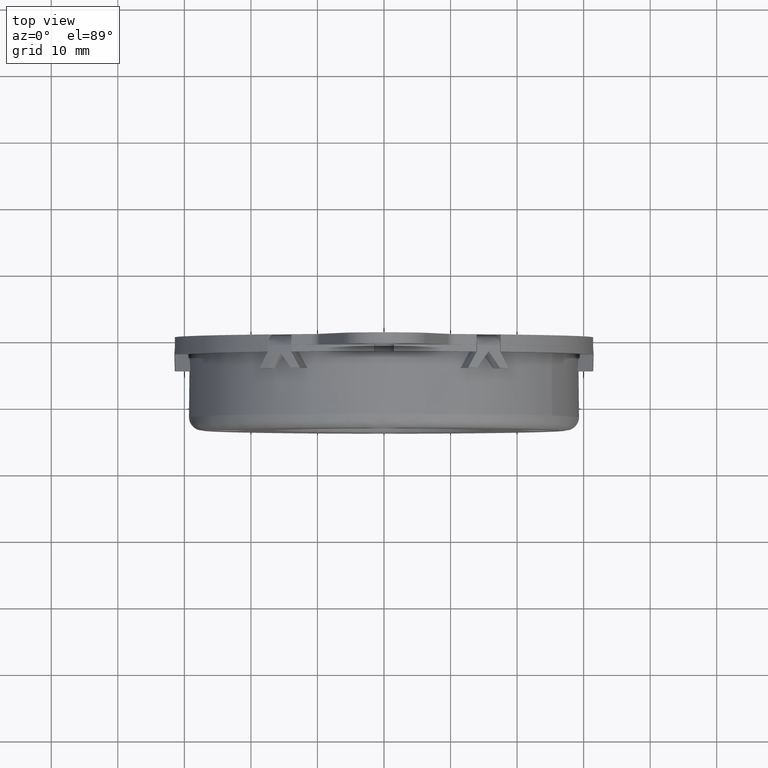
[diagram: clean part render]
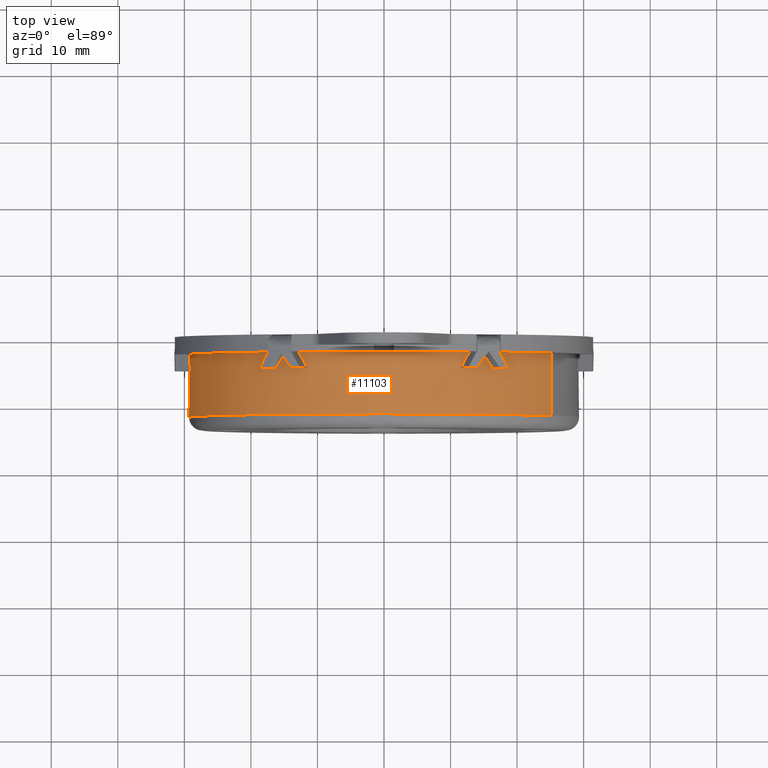
[diagram: same view with one face highlighted and labeled with its STEP entity id]
A machine part, top view. The second image highlights one B-rep face of the part: STEP entity #11103.
In plain terms, the highlighted face is a freeform B-spline surface patch.
Its self-contained STEP definition (entity closure, byte-faithful):
#4214=CARTESIAN_POINT('',(25.217121696561119,-12.000000000325221,14.919322616688611));
#4215=VERTEX_POINT('',#4214);
#4229=CARTESIAN_POINT('',(0.0,-12.000000000000121,29.299990000000001));
#4230=VERTEX_POINT('',#4229);
#4231=CARTESIAN_POINT('',(0.0,-12.000000000000121,29.299990000000001));
#4232=CARTESIAN_POINT('',(16.709020783357232,-12.000000000139755,29.299989999999603));
#4233=CARTESIAN_POINT('',(25.217121696561126,-12.000000000325221,14.919322616688603));
#4241=(BOUNDED_CURVE()B_SPLINE_CURVE(2,(#4231,#4232,#4233),.UNSPECIFIED.,.F.,.U.)B_SPLINE_CURVE_WITH_KNOTS((3,3),(0.0,0.163096429690558),.UNSPECIFIED.)CURVE()GEOMETRIC_REPRESENTATION_ITEM()RATIONAL_B_SPLINE_CURVE((1.0,0.808920646923802,0.867156176042079))REPRESENTATION_ITEM(''));
#4242=EDGE_CURVE('',#4230,#4215,#4241,.T.);
#4244=CARTESIAN_POINT('',(-29.299989999999990,-12.000000000434740,-1.770216E-015));
#4245=VERTEX_POINT('',#4244);
#4246=CARTESIAN_POINT('',(-29.299989999999990,-12.000000000434740,-1.770216E-015));
#4247=CARTESIAN_POINT('',(-29.299989999999998,-12.000000000217428,29.299989999999998));
#4248=CARTESIAN_POINT('',(0.0,-12.000000000000121,29.299990000000001));
#4256=(BOUNDED_CURVE()B_SPLINE_CURVE(2,(#4246,#4247,#4248),.UNSPECIFIED.,.F.,.U.)B_SPLINE_CURVE_WITH_KNOTS((3,3),(0.750000000000000,1.0),.UNSPECIFIED.)CURVE()GEOMETRIC_REPRESENTATION_ITEM()RATIONAL_B_SPLINE_CURVE((1.0,0.707106781186548,1.0))REPRESENTATION_ITEM(''));
#4257=EDGE_CURVE('',#4245,#4230,#4256,.T.);
#4306=CARTESIAN_POINT('',(-25.217121696561129,-12.000000000325221,-14.919322616688600));
#4307=VERTEX_POINT('',#4306);
#4308=CARTESIAN_POINT('',(-25.217121696561126,-12.000000000325221,-14.919322616688603));
#4309=CARTESIAN_POINT('',(-29.299989999999340,-12.000000000390974,-8.018326537708250));
#4310=CARTESIAN_POINT('',(-29.299989999999990,-12.000000000434740,-1.770216E-015));
#4318=(BOUNDED_CURVE()B_SPLINE_CURVE(2,(#4308,#4309,#4310),.UNSPECIFIED.,.F.,.U.)B_SPLINE_CURVE_WITH_KNOTS((3,3),(0.663096429690558,0.750000000000000),.UNSPECIFIED.)CURVE()GEOMETRIC_REPRESENTATION_ITEM()RATIONAL_B_SPLINE_CURVE((0.867156176042079,0.898186134262745,1.0))REPRESENTATION_ITEM(''));
#4319=EDGE_CURVE('',#4307,#4245,#4318,.T.);
#6918=CARTESIAN_POINT('',(-12.793677311467899,-1.599999999999935,26.359282278733652));
#6919=VERTEX_POINT('',#6918);
#6925=CARTESIAN_POINT('',(12.793669727585639,-1.599999999999935,26.359285983434098));
#6926=VERTEX_POINT('',#6925);
#6927=CARTESIAN_POINT('',(12.793669727585639,-1.599999999999935,26.359285983434098));
#6928=CARTESIAN_POINT('',(-0.000004690992737,-1.599999999999935,32.568788190318806));
#6929=CARTESIAN_POINT('',(-12.793677311467899,-1.599999999999935,26.359282278733652));
#6937=(BOUNDED_CURVE()B_SPLINE_CURVE(2,(#6927,#6928,#6929),.UNSPECIFIED.,.F.,.U.)CURVE()GEOMETRIC_REPRESENTATION_ITEM()QUASI_UNIFORM_CURVE()RATIONAL_B_SPLINE_CURVE((1.0,0.899634301060938,1.0))REPRESENTATION_ITEM(''));
#6938=EDGE_CURVE('',#6926,#6919,#6937,.T.);
#6961=CARTESIAN_POINT('',(-16.347880765186702,0.0,24.315360081381449));
#6962=VERTEX_POINT('',#6961);
#6985=CARTESIAN_POINT('',(-12.883779150049060,0.0,26.315360081381399));
#6986=VERTEX_POINT('',#6985);
#6992=CARTESIAN_POINT('',(-12.793669727585680,0.0,26.359285983434098));
#6993=VERTEX_POINT('',#6992);
#6994=CARTESIAN_POINT('',(-12.793669727585680,0.0,26.359285983434098));
#6995=CARTESIAN_POINT('',(-12.838762005693029,0.0,26.337400096948567));
#6996=CARTESIAN_POINT('',(-12.883779150049071,0.0,26.315360081381399));
#7004=(BOUNDED_CURVE()B_SPLINE_CURVE(2,(#6994,#6995,#6996),.UNSPECIFIED.,.F.,.U.)CURVE()GEOMETRIC_REPRESENTATION_ITEM()QUASI_UNIFORM_CURVE()RATIONAL_B_SPLINE_CURVE((1.0,0.999998536791209,1.0))REPRESENTATION_ITEM(''));
#7005=EDGE_CURVE('',#6993,#6986,#7004,.T.);
#7019=CARTESIAN_POINT('',(12.793669727585639,0.0,26.359285983434098));
#7020=VERTEX_POINT('',#7019);
#7026=CARTESIAN_POINT('',(12.883779150049060,0.0,26.315360081381399));
#7027=VERTEX_POINT('',#7026);
#7028=CARTESIAN_POINT('',(12.883779150049060,0.0,26.315360081381399));
#7029=CARTESIAN_POINT('',(12.838762010368836,0.0,26.337400106582002));
#7030=CARTESIAN_POINT('',(12.793669727585639,0.0,26.359285983434098));
#7038=(BOUNDED_CURVE()B_SPLINE_CURVE(2,(#7028,#7029,#7030),.UNSPECIFIED.,.F.,.U.)CURVE()GEOMETRIC_REPRESENTATION_ITEM()QUASI_UNIFORM_CURVE()RATIONAL_B_SPLINE_CURVE((1.0,0.999998536791209,1.0))REPRESENTATION_ITEM(''));
#7039=EDGE_CURVE('',#7027,#7020,#7038,.T.);
#7063=CARTESIAN_POINT('',(16.347880765186702,0.0,24.315360081381499));
#7064=VERTEX_POINT('',#7063);
#7070=CARTESIAN_POINT('',(16.430976423480150,0.0,24.259285983434200));
#7071=VERTEX_POINT('',#7070);
#7072=CARTESIAN_POINT('',(16.430976423480150,0.0,24.259285983434200));
#7073=CARTESIAN_POINT('',(16.389476550746593,0.0,24.287394098546280));
#7074=CARTESIAN_POINT('',(16.347880765186691,0.0,24.315360081381481));
#7082=(BOUNDED_CURVE()B_SPLINE_CURVE(2,(#7072,#7073,#7074),.UNSPECIFIED.,.F.,.U.)CURVE()GEOMETRIC_REPRESENTATION_ITEM()QUASI_UNIFORM_CURVE()RATIONAL_B_SPLINE_CURVE((1.0,0.999998536791209,1.0))REPRESENTATION_ITEM(''));
#7083=EDGE_CURVE('',#7071,#7064,#7082,.T.);
#7313=CARTESIAN_POINT('',(-29.224646151065851,0.0,-2.099999999999920));
#7314=VERTEX_POINT('',#7313);
#7320=CARTESIAN_POINT('',(-29.231659915235749,0.0,-1.999999999999920));
#7321=VERTEX_POINT('',#7320);
#7322=CARTESIAN_POINT('',(-29.231659915235749,0.0,-1.999999999999920));
#7323=CARTESIAN_POINT('',(-29.228238567119401,0.0,-2.050005999169328));
#7324=CARTESIAN_POINT('',(-29.224646151065851,0.0,-2.099999999999920));
#7332=(BOUNDED_CURVE()B_SPLINE_CURVE(2,(#7322,#7323,#7324),.UNSPECIFIED.,.F.,.U.)CURVE()GEOMETRIC_REPRESENTATION_ITEM()QUASI_UNIFORM_CURVE()RATIONAL_B_SPLINE_CURVE((1.0,0.999998536791209,1.0))REPRESENTATION_ITEM(''));
#7333=EDGE_CURVE('',#7321,#7314,#7332,.T.);
#7357=CARTESIAN_POINT('',(-29.231659915235749,0.0,1.999999999999940));
#7358=VERTEX_POINT('',#7357);
#7364=CARTESIAN_POINT('',(-29.224646151065851,0.0,2.099999999999920));
#7365=VERTEX_POINT('',#7364);
#7366=CARTESIAN_POINT('',(-29.224646151065851,0.0,2.099999999999920));
#7367=CARTESIAN_POINT('',(-29.228238556438697,0.0,2.050005998401859));
#7368=CARTESIAN_POINT('',(-29.231659915235760,0.0,1.999999999999933));
#7376=(BOUNDED_CURVE()B_SPLINE_CURVE(2,(#7366,#7367,#7368),.UNSPECIFIED.,.F.,.U.)CURVE()GEOMETRIC_REPRESENTATION_ITEM()QUASI_UNIFORM_CURVE()RATIONAL_B_SPLINE_CURVE((1.0,0.999998536791209,1.0))REPRESENTATION_ITEM(''));
#7377=EDGE_CURVE('',#7365,#7358,#7376,.T.);
#7385=CARTESIAN_POINT('',(-16.430976423480200,0.0,24.259285983434150));
#7386=VERTEX_POINT('',#7385);
#7392=CARTESIAN_POINT('',(-16.347880765186702,0.0,24.315360081381449));
#7393=CARTESIAN_POINT('',(-16.389476556750825,0.0,24.287394107412815));
#7394=CARTESIAN_POINT('',(-16.430976423480200,0.0,24.259285983434150));
#7402=(BOUNDED_CURVE()B_SPLINE_CURVE(2,(#7392,#7393,#7394),.UNSPECIFIED.,.F.,.U.)CURVE()GEOMETRIC_REPRESENTATION_ITEM()QUASI_UNIFORM_CURVE()RATIONAL_B_SPLINE_CURVE((1.0,0.999998536791209,1.0))REPRESENTATION_ITEM(''));
#7403=EDGE_CURVE('',#6962,#7386,#7402,.T.);
#8081=CARTESIAN_POINT('',(16.430969423174400,-1.599999999999935,24.259290698918601));
#8082=VERTEX_POINT('',#8081);
#8088=CARTESIAN_POINT('',(25.217120448898282,-1.599999999999935,14.919333563057901));
#8089=VERTEX_POINT('',#8088);
#8090=CARTESIAN_POINT('',(25.217120448898282,-1.599999999999935,14.919333563057902));
#8091=CARTESIAN_POINT('',(21.871328840929042,-1.599999999999934,20.574498758168122));
#8092=CARTESIAN_POINT('',(16.430969423174400,-1.599999999999935,24.259290698918601));
#8100=(BOUNDED_CURVE()B_SPLINE_CURVE(2,(#8090,#8091,#8092),.UNSPECIFIED.,.F.,.U.)B_SPLINE_CURVE_WITH_KNOTS((3,3),(0.511580370490344,1.0),.UNSPECIFIED.)CURVE()GEOMETRIC_REPRESENTATION_ITEM()RATIONAL_B_SPLINE_CURVE((0.949844069616437,0.950979422514307,1.0))REPRESENTATION_ITEM(''));
#8101=EDGE_CURVE('',#8089,#8082,#8100,.T.);
#8140=CARTESIAN_POINT('',(25.217120299305162,-1.610000000045369,14.919333815904810));
#8141=VERTEX_POINT('',#8140);
#8155=CARTESIAN_POINT('',(16.430969423174400,-1.609999999999890,24.259290698918601));
#8156=VERTEX_POINT('',#8155);
#8157=CARTESIAN_POINT('',(25.217120299305162,-1.610000000045369,14.919333815904814));
#8158=CARTESIAN_POINT('',(21.871328713190998,-1.610000000022630,20.574498844685898));
#8159=CARTESIAN_POINT('',(16.430969423174400,-1.609999999999890,24.259290698918601));
#8167=(BOUNDED_CURVE()B_SPLINE_CURVE(2,(#8157,#8158,#8159),.UNSPECIFIED.,.F.,.U.)B_SPLINE_CURVE_WITH_KNOTS((3,3),(0.511580381396126,1.0),.UNSPECIFIED.)CURVE()GEOMETRIC_REPRESENTATION_ITEM()RATIONAL_B_SPLINE_CURVE((0.949844069667139,0.950979423608873,1.0))REPRESENTATION_ITEM(''));
#8168=EDGE_CURVE('',#8141,#8156,#8167,.T.);
#8183=CARTESIAN_POINT('',(-29.224646734642249,-1.599999999999935,2.099991579815081));
#8184=VERTEX_POINT('',#8183);
#8190=CARTESIAN_POINT('',(-16.430976423480200,-1.599999999999935,24.259285983434150));
#8191=VERTEX_POINT('',#8190);
#8192=CARTESIAN_POINT('',(-16.430976423480200,-1.599999999999935,24.259285983434150));
#8193=CARTESIAN_POINT('',(-28.205400288787061,-1.599999999999935,16.284390032640527));
#8194=CARTESIAN_POINT('',(-29.224646734642249,-1.599999999999935,2.099991579815081));
#8202=(BOUNDED_CURVE()B_SPLINE_CURVE(2,(#8192,#8193,#8194),.UNSPECIFIED.,.F.,.U.)CURVE()GEOMETRIC_REPRESENTATION_ITEM()QUASI_UNIFORM_CURVE()RATIONAL_B_SPLINE_CURVE((1.0,0.899634301060939,1.0))REPRESENTATION_ITEM(''));
#8203=EDGE_CURVE('',#8191,#8184,#8202,.T.);
#8220=CARTESIAN_POINT('',(-16.430976412744400,-1.609999999999890,24.259285964839101));
#8221=VERTEX_POINT('',#8220);
#8227=CARTESIAN_POINT('',(-29.224646734642249,-1.609999999999890,2.099991579815081));
#8228=VERTEX_POINT('',#8227);
#8229=CARTESIAN_POINT('',(-16.430976412744400,-1.609999999999890,24.259285964839101));
#8230=CARTESIAN_POINT('',(-28.205400288855209,-1.609999999999891,16.284390031692229));
#8231=CARTESIAN_POINT('',(-29.224646734642249,-1.609999999999890,2.099991579815081));
#8239=(BOUNDED_CURVE()B_SPLINE_CURVE(2,(#8229,#8230,#8231),.UNSPECIFIED.,.F.,.U.)CURVE()GEOMETRIC_REPRESENTATION_ITEM()QUASI_UNIFORM_CURVE()RATIONAL_B_SPLINE_CURVE((1.0,0.899634301072406,1.0))REPRESENTATION_ITEM(''));
#8240=EDGE_CURVE('',#8221,#8228,#8239,.T.);
#8334=CARTESIAN_POINT('',(-25.217120450970260,-1.599999999999935,-14.919333564282530));
#8335=VERTEX_POINT('',#8334);
#8349=CARTESIAN_POINT('',(-29.224646151065851,-1.599999999999935,-2.099999999999920));
#8350=VERTEX_POINT('',#8349);
#8351=CARTESIAN_POINT('',(-29.224646151065851,-1.599999999999935,-2.099999999999920));
#8352=CARTESIAN_POINT('',(-28.730159819984703,-1.599999999999935,-8.981489865645267));
#8353=CARTESIAN_POINT('',(-25.217120450970253,-1.599999999999935,-14.919333564282530));
#8361=(BOUNDED_CURVE()B_SPLINE_CURVE(2,(#8351,#8352,#8353),.UNSPECIFIED.,.F.,.U.)B_SPLINE_CURVE_WITH_KNOTS((3,3),(0.0,0.511580370607263),.UNSPECIFIED.)CURVE()GEOMETRIC_REPRESENTATION_ITEM()RATIONAL_B_SPLINE_CURVE((1.0,0.948654878540498,0.949844069611250))REPRESENTATION_ITEM(''));
#8362=EDGE_CURVE('',#8350,#8335,#8361,.T.);
#8379=CARTESIAN_POINT('',(-29.224646129594149,-1.609999999999890,-2.099999999999930));
#8380=VERTEX_POINT('',#8379);
#8386=CARTESIAN_POINT('',(-25.217120299305162,-1.610000000045395,-14.919333815904810));
#8387=VERTEX_POINT('',#8386);
#8388=CARTESIAN_POINT('',(-29.224646129594149,-1.609999999999890,-2.099999999999930));
#8389=CARTESIAN_POINT('',(-28.730159798587735,-1.610000000022642,-8.981490019542340));
#8390=CARTESIAN_POINT('',(-25.217120299305162,-1.610000000045395,-14.919333815904814));
#8398=(BOUNDED_CURVE()B_SPLINE_CURVE(2,(#8388,#8389,#8390),.UNSPECIFIED.,.F.,.U.)B_SPLINE_CURVE_WITH_KNOTS((3,3),(0.0,0.511580381396126),.UNSPECIFIED.)CURVE()GEOMETRIC_REPRESENTATION_ITEM()RATIONAL_B_SPLINE_CURVE((1.0,0.948654877463532,0.949844069667139))REPRESENTATION_ITEM(''));
#8399=EDGE_CURVE('',#8380,#8387,#8398,.T.);
#8429=CARTESIAN_POINT('',(12.858229407723879,-2.599999999999915,26.327843635558999));
#8430=VERTEX_POINT('',#8429);
#8437=CARTESIAN_POINT('',(12.883779150049060,-2.599999999999935,26.315360081381399));
#8438=VERTEX_POINT('',#8437);
#8444=CARTESIAN_POINT('',(12.883779150049060,-2.599999999999935,26.315360081381399));
#8445=CARTESIAN_POINT('',(12.871007309752066,-2.599999999999925,26.321608056681171));
#8446=CARTESIAN_POINT('',(12.858229407723879,-2.599999999999915,26.327843635558999));
#8454=(BOUNDED_CURVE()B_SPLINE_CURVE(2,(#8444,#8445,#8446),.UNSPECIFIED.,.F.,.U.)CURVE()GEOMETRIC_REPRESENTATION_ITEM()QUASI_UNIFORM_CURVE()RATIONAL_B_SPLINE_CURVE((1.0,0.999999882260025,1.0))REPRESENTATION_ITEM(''));
#8455=EDGE_CURVE('',#8438,#8430,#8454,.T.);
#8465=CARTESIAN_POINT('',(16.371471064996101,-2.599999999999935,24.299483051456001));
#8466=VERTEX_POINT('',#8465);
#8472=CARTESIAN_POINT('',(16.347880765186702,-2.599999999999935,24.315360081381499));
#8473=VERTEX_POINT('',#8472);
#8474=CARTESIAN_POINT('',(16.371471064996101,-2.599999999999935,24.299483051455979));
#8475=CARTESIAN_POINT('',(16.359679767249865,-2.599999999999934,24.307427290000579));
#8476=CARTESIAN_POINT('',(16.347880765186691,-2.599999999999935,24.315360081381481));
#8484=(BOUNDED_CURVE()B_SPLINE_CURVE(2,(#8474,#8475,#8476),.UNSPECIFIED.,.F.,.U.)CURVE()GEOMETRIC_REPRESENTATION_ITEM()QUASI_UNIFORM_CURVE()RATIONAL_B_SPLINE_CURVE((1.0,0.999999882266767,1.0))REPRESENTATION_ITEM(''));
#8485=EDGE_CURVE('',#8466,#8473,#8484,.T.);
#8503=CARTESIAN_POINT('',(16.430976423480150,-2.599999999999935,24.259285983434200));
#8504=VERTEX_POINT('',#8503);
#8505=CARTESIAN_POINT('',(16.430976423480150,-2.599999999999935,24.259285983434200));
#8506=CARTESIAN_POINT('',(16.430969423174400,-1.609999999999890,24.259290698918601));
#8507=QUASI_UNIFORM_CURVE('',1,(#8505,#8506),.UNSPECIFIED.,.F.,.U.);
#8508=EDGE_CURVE('',#8504,#8156,#8507,.T.);
#8523=CARTESIAN_POINT('',(-16.371466711396749,-2.599999999999915,24.299475132556449));
#8524=VERTEX_POINT('',#8523);
#8531=CARTESIAN_POINT('',(-16.347880765186702,-2.599999999999935,24.315360081381449));
#8532=VERTEX_POINT('',#8531);
#8538=CARTESIAN_POINT('',(-16.347880765186702,-2.599999999999935,24.315360081381449));
#8539=CARTESIAN_POINT('',(-16.359677590669637,-2.599999999999925,24.307423330879303));
#8540=CARTESIAN_POINT('',(-16.371466711396749,-2.599999999999915,24.299475132556449));
#8548=(BOUNDED_CURVE()B_SPLINE_CURVE(2,(#8538,#8539,#8540),.UNSPECIFIED.,.F.,.U.)CURVE()GEOMETRIC_REPRESENTATION_ITEM()QUASI_UNIFORM_CURVE()RATIONAL_B_SPLINE_CURVE((1.0,0.999999882260025,1.0))REPRESENTATION_ITEM(''));
#8549=EDGE_CURVE('',#8532,#8524,#8548,.T.);
#8561=CARTESIAN_POINT('',(-16.430976423480200,-2.599999999999935,24.259285983434150));
#8562=VERTEX_POINT('',#8561);
#8568=CARTESIAN_POINT('',(-16.430976423480200,-2.599999999999935,24.259285983434150));
#8569=CARTESIAN_POINT('',(-16.430976412744400,-1.609999999999890,24.259285964839101));
#8570=QUASI_UNIFORM_CURVE('',1,(#8568,#8569),.UNSPECIFIED.,.F.,.U.);
#8571=EDGE_CURVE('',#8562,#8221,#8570,.T.);
#8581=CARTESIAN_POINT('',(-12.858234088892379,-2.599999999999935,26.327851365336400));
#8582=VERTEX_POINT('',#8581);
#8588=CARTESIAN_POINT('',(-12.883779150049060,-2.599999999999935,26.315360081381399));
#8589=VERTEX_POINT('',#8588);
#8590=CARTESIAN_POINT('',(-12.858234088892379,-2.599999999999935,26.327851365336429));
#8591=CARTESIAN_POINT('',(-12.871009650162367,-2.599999999999934,26.321611921215176));
#8592=CARTESIAN_POINT('',(-12.883779150049071,-2.599999999999935,26.315360081381399));
#8600=(BOUNDED_CURVE()B_SPLINE_CURVE(2,(#8590,#8591,#8592),.UNSPECIFIED.,.F.,.U.)CURVE()GEOMETRIC_REPRESENTATION_ITEM()QUASI_UNIFORM_CURVE()RATIONAL_B_SPLINE_CURVE((1.0,0.999999882266767,1.0))REPRESENTATION_ITEM(''));
#8601=EDGE_CURVE('',#8582,#8589,#8600,.T.);
#8617=CARTESIAN_POINT('',(-29.229696119120501,-2.599999999999915,-2.028368503002555));
#8618=VERTEX_POINT('',#8617);
#8625=CARTESIAN_POINT('',(-29.231659915235749,-2.599999999999935,-1.999999999999920));
#8626=VERTEX_POINT('',#8625);
#8632=CARTESIAN_POINT('',(-29.231659915235749,-2.599999999999935,-1.999999999999920));
#8633=CARTESIAN_POINT('',(-29.230684900418979,-2.599999999999925,-2.014184725801563));
#8634=CARTESIAN_POINT('',(-29.229696119120501,-2.599999999999915,-2.028368503002555));
#8642=(BOUNDED_CURVE()B_SPLINE_CURVE(2,(#8632,#8633,#8634),.UNSPECIFIED.,.F.,.U.)CURVE()GEOMETRIC_REPRESENTATION_ITEM()QUASI_UNIFORM_CURVE()RATIONAL_B_SPLINE_CURVE((1.0,0.999999882260025,1.0))REPRESENTATION_ITEM(''));
#8643=EDGE_CURVE('',#8626,#8618,#8642,.T.);
#8655=CARTESIAN_POINT('',(-29.224646151065851,-2.599999999999935,-2.099999999999920));
#8656=VERTEX_POINT('',#8655);
#8662=CARTESIAN_POINT('',(-29.224646151065851,-2.599999999999935,-2.099999999999920));
#8663=CARTESIAN_POINT('',(-29.224646129594149,-1.609999999999890,-2.099999999999930));
#8664=QUASI_UNIFORM_CURVE('',1,(#8662,#8663),.UNSPECIFIED.,.F.,.U.);
#8665=EDGE_CURVE('',#8656,#8380,#8664,.T.);
#8675=CARTESIAN_POINT('',(-29.229705153888350,-2.599999999999935,2.028368313880460));
#8676=VERTEX_POINT('',#8675);
#8682=CARTESIAN_POINT('',(-29.231659915235749,-2.599999999999935,1.999999999999940));
#8683=VERTEX_POINT('',#8682);
#8684=CARTESIAN_POINT('',(-29.229705153888339,-2.599999999999935,2.028368313880444));
#8685=CARTESIAN_POINT('',(-29.230689417408705,-2.599999999999934,2.014184631214363));
#8686=CARTESIAN_POINT('',(-29.231659915235760,-2.599999999999935,1.999999999999933));
#8694=(BOUNDED_CURVE()B_SPLINE_CURVE(2,(#8684,#8685,#8686),.UNSPECIFIED.,.F.,.U.)CURVE()GEOMETRIC_REPRESENTATION_ITEM()QUASI_UNIFORM_CURVE()RATIONAL_B_SPLINE_CURVE((1.0,0.999999882266767,1.0))REPRESENTATION_ITEM(''));
#8695=EDGE_CURVE('',#8676,#8683,#8694,.T.);
#8713=CARTESIAN_POINT('',(-29.224646151065851,-2.599999999999935,2.099999999999920));
#8714=VERTEX_POINT('',#8713);
#8715=CARTESIAN_POINT('',(-29.224646151065851,-2.599999999999935,2.099999999999920));
#8716=CARTESIAN_POINT('',(-29.224646734642249,-1.609999999999890,2.099991579815081));
#8717=QUASI_UNIFORM_CURVE('',1,(#8715,#8716),.UNSPECIFIED.,.F.,.U.);
#8718=EDGE_CURVE('',#8714,#8228,#8717,.T.);
#8954=CARTESIAN_POINT('',(17.576186145647199,-5.062030000000000,23.442847407549198));
#8955=VERTEX_POINT('',#8954);
#8961=CARTESIAN_POINT('',(16.371471064996101,-2.599999999999935,24.299483051456001));
#8962=CARTESIAN_POINT('',(16.984636583386948,-3.833959598204608,23.886365041302884));
#8963=CARTESIAN_POINT('',(17.576186145647199,-5.062030000000000,23.442847407549198));
#8971=(BOUNDED_CURVE()B_SPLINE_CURVE(2,(#8961,#8962,#8963),.UNSPECIFIED.,.F.,.U.)CURVE()GEOMETRIC_REPRESENTATION_ITEM()QUASI_UNIFORM_CURVE()RATIONAL_B_SPLINE_CURVE((1.0,0.999681779962156,1.0))REPRESENTATION_ITEM(''));
#8972=EDGE_CURVE('',#8466,#8955,#8971,.T.);
#8984=CARTESIAN_POINT('',(16.347876254666350,-5.062030000000000,24.315352268931200));
#8985=VERTEX_POINT('',#8984);
#8991=CARTESIAN_POINT('',(17.576186145647199,-5.062030000000000,23.442847407549198));
#8992=CARTESIAN_POINT('',(16.973251329458478,-5.062030000000000,23.894895504728023));
#8993=CARTESIAN_POINT('',(16.347876254666339,-5.062030000000000,24.315352268931179));
#9001=(BOUNDED_CURVE()B_SPLINE_CURVE(2,(#8991,#8992,#8993),.UNSPECIFIED.,.F.,.U.)CURVE()GEOMETRIC_REPRESENTATION_ITEM()QUASI_UNIFORM_CURVE()RATIONAL_B_SPLINE_CURVE((1.0,0.999669421492760,1.0))REPRESENTATION_ITEM(''));
#9002=EDGE_CURVE('',#8955,#8985,#9001,.T.);
#9014=CARTESIAN_POINT('',(14.682739700077500,-2.599999999999915,25.355602317828449));
#9015=VERTEX_POINT('',#9014);
#9021=CARTESIAN_POINT('',(16.347876254666350,-5.062030000000000,24.315352268931200));
#9022=CARTESIAN_POINT('',(15.532744308087945,-3.832451768960326,24.863387767100921));
#9023=CARTESIAN_POINT('',(14.682739700077500,-2.599999999999915,25.355602317828449));
#9031=(BOUNDED_CURVE()B_SPLINE_CURVE(2,(#9021,#9022,#9023),.UNSPECIFIED.,.F.,.U.)CURVE()GEOMETRIC_REPRESENTATION_ITEM()QUASI_UNIFORM_CURVE()RATIONAL_B_SPLINE_CURVE((1.0,0.999438565831526,1.0))REPRESENTATION_ITEM(''));
#9032=EDGE_CURVE('',#8985,#9015,#9031,.T.);
#9044=CARTESIAN_POINT('',(12.883774639528600,-5.062030000000000,26.315352268931250));
#9045=VERTEX_POINT('',#9044);
#9051=CARTESIAN_POINT('',(14.617225885456021,-2.599999999999915,25.393426736335801));
#9052=VERTEX_POINT('',#9051);
#9053=CARTESIAN_POINT('',(14.617225885456021,-2.599999999999915,25.393426736335801));
#9054=CARTESIAN_POINT('',(13.765953276408601,-3.832451768960355,25.883445044843270));
#9055=CARTESIAN_POINT('',(12.883774639528600,-5.062030000000000,26.315352268931250));
#9063=(BOUNDED_CURVE()B_SPLINE_CURVE(2,(#9053,#9054,#9055),.UNSPECIFIED.,.F.,.U.)CURVE()GEOMETRIC_REPRESENTATION_ITEM()QUASI_UNIFORM_CURVE()RATIONAL_B_SPLINE_CURVE((1.0,0.999438565831787,1.0))REPRESENTATION_ITEM(''));
#9064=EDGE_CURVE('',#9052,#9045,#9063,.T.);
#9080=CARTESIAN_POINT('',(11.513999057324140,-5.062030000000000,26.942851365585650));
#9081=VERTEX_POINT('',#9080);
#9087=CARTESIAN_POINT('',(12.883774639528600,-5.062030000000000,26.315352268931250));
#9088=CARTESIAN_POINT('',(12.206956337085316,-5.062030000000000,26.646716804411177));
#9089=CARTESIAN_POINT('',(11.513999057324130,-5.062030000000000,26.942851365585629));
#9097=(BOUNDED_CURVE()B_SPLINE_CURVE(2,(#9087,#9088,#9089),.UNSPECIFIED.,.F.,.U.)CURVE()GEOMETRIC_REPRESENTATION_ITEM()QUASI_UNIFORM_CURVE()RATIONAL_B_SPLINE_CURVE((1.0,0.999669417073585,1.0))REPRESENTATION_ITEM(''));
#9098=EDGE_CURVE('',#9045,#9081,#9097,.T.);
#9111=CARTESIAN_POINT('',(11.513999057324140,-5.062030000000000,26.942851365585650));
#9112=CARTESIAN_POINT('',(12.193873771388800,-3.833959623385247,26.652307625035643));
#9113=CARTESIAN_POINT('',(12.858229407723851,-2.599999999999985,26.327843635559020));
#9121=(BOUNDED_CURVE()B_SPLINE_CURVE(2,(#9111,#9112,#9113),.UNSPECIFIED.,.F.,.U.)CURVE()GEOMETRIC_REPRESENTATION_ITEM()QUASI_UNIFORM_CURVE()RATIONAL_B_SPLINE_CURVE((1.0,0.999681775707354,1.0))REPRESENTATION_ITEM(''));
#9122=EDGE_CURVE('',#9081,#8430,#9121,.T.);
#9137=CARTESIAN_POINT('',(16.347880765186702,-2.599999999999935,24.315360081381499));
#9138=CARTESIAN_POINT('',(16.347880765186702,0.0,24.315360081381499));
#9139=QUASI_UNIFORM_CURVE('',1,(#9137,#9138),.UNSPECIFIED.,.F.,.U.);
#9140=EDGE_CURVE('',#8473,#7064,#9139,.T.);
#9153=CARTESIAN_POINT('',(12.883779150049060,-2.599999999999935,26.315360081381399));
#9154=CARTESIAN_POINT('',(12.883779150049060,0.0,26.315360081381399));
#9155=QUASI_UNIFORM_CURVE('',1,(#9153,#9154),.UNSPECIFIED.,.F.,.U.);
#9156=EDGE_CURVE('',#8438,#7027,#9155,.T.);
#9168=CARTESIAN_POINT('',(-11.514008319156400,-5.062030000000000,26.942847407549600));
#9169=VERTEX_POINT('',#9168);
#9175=CARTESIAN_POINT('',(-12.858234088892379,-2.599999999999935,26.327851365336400));
#9176=CARTESIAN_POINT('',(-12.193880638143510,-3.833959598204624,26.652309275911218));
#9177=CARTESIAN_POINT('',(-11.514008319156400,-5.062030000000000,26.942847407549600));
#9185=(BOUNDED_CURVE()B_SPLINE_CURVE(2,(#9175,#9176,#9177),.UNSPECIFIED.,.F.,.U.)CURVE()GEOMETRIC_REPRESENTATION_ITEM()QUASI_UNIFORM_CURVE()RATIONAL_B_SPLINE_CURVE((1.0,0.999681779962037,1.0))REPRESENTATION_ITEM(''));
#9186=EDGE_CURVE('',#8582,#9169,#9185,.T.);
#9198=CARTESIAN_POINT('',(-12.883774639528861,-5.062030000000000,26.315352268931051));
#9199=VERTEX_POINT('',#9198);
#9205=CARTESIAN_POINT('',(-11.514008319156400,-5.062030000000000,26.942847407549600));
#9206=CARTESIAN_POINT('',(-12.206960863139839,-5.062030000000000,26.646714588493044));
#9207=CARTESIAN_POINT('',(-12.883774639528840,-5.062030000000000,26.315352268931029));
#9215=(BOUNDED_CURVE()B_SPLINE_CURVE(2,(#9205,#9206,#9207),.UNSPECIFIED.,.F.,.U.)CURVE()GEOMETRIC_REPRESENTATION_ITEM()QUASI_UNIFORM_CURVE()RATIONAL_B_SPLINE_CURVE((1.0,0.999669421492760,1.0))REPRESENTATION_ITEM(''));
#9216=EDGE_CURVE('',#9169,#9199,#9215,.T.);
#9228=CARTESIAN_POINT('',(-14.617225885456300,-2.599999999999915,25.393426736335702));
#9229=VERTEX_POINT('',#9228);
#9235=CARTESIAN_POINT('',(-12.883774639528861,-5.062030000000000,26.315352268931051));
#9236=CARTESIAN_POINT('',(-13.765953276408847,-3.832451768960343,25.883445044843157));
#9237=CARTESIAN_POINT('',(-14.617225885456291,-2.599999999999917,25.393426736335659));
#9245=(BOUNDED_CURVE()B_SPLINE_CURVE(2,(#9235,#9236,#9237),.UNSPECIFIED.,.F.,.U.)CURVE()GEOMETRIC_REPRESENTATION_ITEM()QUASI_UNIFORM_CURVE()RATIONAL_B_SPLINE_CURVE((1.0,0.999438565832030,1.0))REPRESENTATION_ITEM(''));
#9246=EDGE_CURVE('',#9199,#9229,#9245,.T.);
#9258=CARTESIAN_POINT('',(-16.347876254666549,-5.062030000000000,24.315352268931001));
#9259=VERTEX_POINT('',#9258);
#9265=CARTESIAN_POINT('',(-14.682739700077640,-2.599999999999915,25.355602317828399));
#9266=VERTEX_POINT('',#9265);
#9267=CARTESIAN_POINT('',(-14.682739700077640,-2.599999999999915,25.355602317828399));
#9268=CARTESIAN_POINT('',(-15.532744308085215,-3.832451768955695,24.863387767103266));
#9269=CARTESIAN_POINT('',(-16.347876254666492,-5.062030000000029,24.315352268931079));
#9277=(BOUNDED_CURVE()B_SPLINE_CURVE(2,(#9267,#9268,#9269),.UNSPECIFIED.,.F.,.U.)CURVE()GEOMETRIC_REPRESENTATION_ITEM()QUASI_UNIFORM_CURVE()RATIONAL_B_SPLINE_CURVE((1.0,0.999438565831746,1.0))REPRESENTATION_ITEM(''));
#9278=EDGE_CURVE('',#9266,#9259,#9277,.T.);
#9294=CARTESIAN_POINT('',(-17.576194204323350,-5.062030000000000,23.442841365585600));
#9295=VERTEX_POINT('',#9294);
#9301=CARTESIAN_POINT('',(-16.347876254666559,-5.062030000000000,24.315352268931029));
#9302=CARTESIAN_POINT('',(-16.973255511527061,-5.062030000000001,23.894892693008948));
#9303=CARTESIAN_POINT('',(-17.576194204323329,-5.062030000000000,23.442841365585590));
#9311=(BOUNDED_CURVE()B_SPLINE_CURVE(2,(#9301,#9302,#9303),.UNSPECIFIED.,.F.,.U.)CURVE()GEOMETRIC_REPRESENTATION_ITEM()QUASI_UNIFORM_CURVE()RATIONAL_B_SPLINE_CURVE((1.0,0.999669417073585,1.0))REPRESENTATION_ITEM(''));
#9312=EDGE_CURVE('',#9259,#9295,#9311,.T.);
#9325=CARTESIAN_POINT('',(-17.576194204323350,-5.062029999999990,23.442841365585579));
#9326=CARTESIAN_POINT('',(-16.984638587064200,-3.833959623385099,23.886358269081267));
#9327=CARTESIAN_POINT('',(-16.371466711396721,-2.599999999999934,24.299475132556449));
#9335=(BOUNDED_CURVE()B_SPLINE_CURVE(2,(#9325,#9326,#9327),.UNSPECIFIED.,.F.,.U.)CURVE()GEOMETRIC_REPRESENTATION_ITEM()QUASI_UNIFORM_CURVE()RATIONAL_B_SPLINE_CURVE((1.0,0.999681775708344,1.0))REPRESENTATION_ITEM(''));
#9336=EDGE_CURVE('',#9295,#8524,#9335,.T.);
#9351=CARTESIAN_POINT('',(-12.883779150049060,-2.599999999999935,26.315360081381399));
#9352=CARTESIAN_POINT('',(-12.883779150049060,0.0,26.315360081381399));
#9353=QUASI_UNIFORM_CURVE('',1,(#9351,#9352),.UNSPECIFIED.,.F.,.U.);
#9354=EDGE_CURVE('',#8589,#6986,#9353,.T.);
#9367=CARTESIAN_POINT('',(-16.347880765186702,-2.599999999999935,24.315360081381449));
#9368=CARTESIAN_POINT('',(-16.347880765186702,0.0,24.315360081381449));
#9369=QUASI_UNIFORM_CURVE('',1,(#9367,#9368),.UNSPECIFIED.,.F.,.U.);
#9370=EDGE_CURVE('',#8532,#6962,#9369,.T.);
#9382=CARTESIAN_POINT('',(-29.090194464803751,-5.062030000000000,3.500000000000000));
#9383=VERTEX_POINT('',#9382);
#9389=CARTESIAN_POINT('',(-29.229705153888350,-2.599999999999935,2.028368313880460));
#9390=CARTESIAN_POINT('',(-29.178517221530484,-3.833959598204626,2.765944234608197));
#9391=CARTESIAN_POINT('',(-29.090194464803751,-5.062030000000000,3.500000000000000));
#9399=(BOUNDED_CURVE()B_SPLINE_CURVE(2,(#9389,#9390,#9391),.UNSPECIFIED.,.F.,.U.)CURVE()GEOMETRIC_REPRESENTATION_ITEM()QUASI_UNIFORM_CURVE()RATIONAL_B_SPLINE_CURVE((1.0,0.999681779961911,1.0))REPRESENTATION_ITEM(''));
#9400=EDGE_CURVE('',#8676,#9383,#9399,.T.);
#9412=CARTESIAN_POINT('',(-29.231650894195148,-5.062030000000000,1.999999999999885));
#9413=VERTEX_POINT('',#9412);
#9419=CARTESIAN_POINT('',(-29.090194464803769,-5.062030000000000,3.500000000000006));
#9420=CARTESIAN_POINT('',(-29.180212192598287,-5.062030000000000,2.751819083765045));
#9421=CARTESIAN_POINT('',(-29.231650894195159,-5.062030000000000,1.999999999999886));
#9429=(BOUNDED_CURVE()B_SPLINE_CURVE(2,(#9419,#9420,#9421),.UNSPECIFIED.,.F.,.U.)CURVE()GEOMETRIC_REPRESENTATION_ITEM()QUASI_UNIFORM_CURVE()RATIONAL_B_SPLINE_CURVE((1.0,0.999669421492760,1.0))REPRESENTATION_ITEM(''));
#9430=EDGE_CURVE('',#9383,#9413,#9429,.T.);
#9442=CARTESIAN_POINT('',(-29.299965585533801,-2.599999999999915,0.037824418507170));
#9443=VERTEX_POINT('',#9442);
#9449=CARTESIAN_POINT('',(-29.231650894195148,-5.062030000000055,1.999999999999935));
#9450=CARTESIAN_POINT('',(-29.298697584497042,-3.832451768960368,1.020057277741878));
#9451=CARTESIAN_POINT('',(-29.299965585533791,-2.599999999999911,0.037824418507168));
#9459=(BOUNDED_CURVE()B_SPLINE_CURVE(2,(#9449,#9450,#9451),.UNSPECIFIED.,.F.,.U.)CURVE()GEOMETRIC_REPRESENTATION_ITEM()QUASI_UNIFORM_CURVE()RATIONAL_B_SPLINE_CURVE((1.0,0.999438565832009,1.0))REPRESENTATION_ITEM(''));
#9460=EDGE_CURVE('',#9413,#9443,#9459,.T.);
#9472=CARTESIAN_POINT('',(-29.231650894195099,-5.062030000000000,-2.000000000000115));
#9473=VERTEX_POINT('',#9472);
#9479=CARTESIAN_POINT('',(-29.299965585533801,-2.599999999999915,-0.037824418507396));
#9480=VERTEX_POINT('',#9479);
#9481=CARTESIAN_POINT('',(-29.299965585533801,-2.599999999999915,-0.037824418507396));
#9482=CARTESIAN_POINT('',(-29.298697584497202,-3.832451768957232,-1.020057277739582));
#9483=CARTESIAN_POINT('',(-29.231650894195141,-5.062030000000010,-2.000000000000082));
#9491=(BOUNDED_CURVE()B_SPLINE_CURVE(2,(#9481,#9482,#9483),.UNSPECIFIED.,.F.,.U.)CURVE()GEOMETRIC_REPRESENTATION_ITEM()QUASI_UNIFORM_CURVE()RATIONAL_B_SPLINE_CURVE((1.0,0.999438565831762,1.0))REPRESENTATION_ITEM(''));
#9492=EDGE_CURVE('',#9480,#9473,#9491,.T.);
#9508=CARTESIAN_POINT('',(-29.090193261647499,-5.062030000000000,-3.500010000000000));
#9509=VERTEX_POINT('',#9508);
#9515=CARTESIAN_POINT('',(-29.231650894195141,-5.062030000000000,-2.000000000000108));
#9516=CARTESIAN_POINT('',(-29.180211848612426,-5.062030000000001,-2.751824111402224));
#9517=CARTESIAN_POINT('',(-29.090193261647482,-5.062030000000000,-3.500009999999977));
#9525=(BOUNDED_CURVE()B_SPLINE_CURVE(2,(#9515,#9516,#9517),.UNSPECIFIED.,.F.,.U.)CURVE()GEOMETRIC_REPRESENTATION_ITEM()QUASI_UNIFORM_CURVE()RATIONAL_B_SPLINE_CURVE((1.0,0.999669417073585,1.0))REPRESENTATION_ITEM(''));
#9526=EDGE_CURVE('',#9473,#9509,#9525,.T.);
#9539=CARTESIAN_POINT('',(-29.090193261647482,-5.062029999999998,-3.500010000000005));
#9540=CARTESIAN_POINT('',(-29.178512358452974,-3.833959623385196,-2.765949355954413));
#9541=CARTESIAN_POINT('',(-29.229696119120490,-2.599999999999911,-2.028368503002552));
#9549=(BOUNDED_CURVE()B_SPLINE_CURVE(2,(#9539,#9540,#9541),.UNSPECIFIED.,.F.,.U.)CURVE()GEOMETRIC_REPRESENTATION_ITEM()QUASI_UNIFORM_CURVE()RATIONAL_B_SPLINE_CURVE((1.0,0.999681775707988,1.0))REPRESENTATION_ITEM(''));
#9550=EDGE_CURVE('',#9509,#8618,#9549,.T.);
#9565=CARTESIAN_POINT('',(-29.231659915235749,-2.599999999999935,1.999999999999940));
#9566=CARTESIAN_POINT('',(-29.231659915235749,0.0,1.999999999999940));
#9567=QUASI_UNIFORM_CURVE('',1,(#9565,#9566),.UNSPECIFIED.,.F.,.U.);
#9568=EDGE_CURVE('',#8683,#7358,#9567,.T.);
#9581=CARTESIAN_POINT('',(-29.231659915235749,-2.599999999999935,-1.999999999999920));
#9582=CARTESIAN_POINT('',(-29.231659915235749,0.0,-1.999999999999920));
#9583=QUASI_UNIFORM_CURVE('',1,(#9581,#9582),.UNSPECIFIED.,.F.,.U.);
#9584=EDGE_CURVE('',#8626,#7321,#9583,.T.);
#10427=CARTESIAN_POINT('',(25.217119864870099,-2.600000000045553,14.919333682688350));
#10428=VERTEX_POINT('',#10427);
#10429=CARTESIAN_POINT('',(25.217119864870103,-2.600000000045553,14.919333682688350));
#10430=CARTESIAN_POINT('',(21.871330369041598,-2.600000000022744,20.574494744263244));
#10431=CARTESIAN_POINT('',(16.430976423480150,-2.599999999999935,24.259285983434200));
#10439=(BOUNDED_CURVE()B_SPLINE_CURVE(2,(#10429,#10430,#10431),.UNSPECIFIED.,.F.,.U.)B_SPLINE_CURVE_WITH_KNOTS((3,3),(0.511580545501842,1.0),.UNSPECIFIED.)CURVE()GEOMETRIC_REPRESENTATION_ITEM()RATIONAL_B_SPLINE_CURVE((0.949844101853152,0.950979470791206,1.0))REPRESENTATION_ITEM(''));
#10440=EDGE_CURVE('',#10428,#8504,#10439,.T.);
#10514=CARTESIAN_POINT('',(-29.299965585533791,-2.599999999999915,0.037824418507178));
#10515=CARTESIAN_POINT('',(-29.300014414486551,-2.599999999999914,-2.231162E-013));
#10516=CARTESIAN_POINT('',(-29.299965585533791,-2.599999999999915,-0.037824418507401));
#10524=(BOUNDED_CURVE()B_SPLINE_CURVE(2,(#10514,#10515,#10516),.UNSPECIFIED.,.F.,.U.)CURVE()GEOMETRIC_REPRESENTATION_ITEM()QUASI_UNIFORM_CURVE()RATIONAL_B_SPLINE_CURVE((1.0,0.999999166741483,1.0))REPRESENTATION_ITEM(''));
#10525=EDGE_CURVE('',#9443,#9480,#10524,.T.);
#10538=CARTESIAN_POINT('',(-14.617225885456270,-2.599999999999915,25.393426736335670));
#10539=CARTESIAN_POINT('',(-14.650007207243656,-2.599999999999915,25.374556814195373));
#10540=CARTESIAN_POINT('',(-14.682739700077621,-2.599999999999915,25.355602317828389));
#10548=(BOUNDED_CURVE()B_SPLINE_CURVE(2,(#10538,#10539,#10540),.UNSPECIFIED.,.F.,.U.)CURVE()GEOMETRIC_REPRESENTATION_ITEM()QUASI_UNIFORM_CURVE()RATIONAL_B_SPLINE_CURVE((1.0,0.999999166741483,1.0))REPRESENTATION_ITEM(''));
#10549=EDGE_CURVE('',#9229,#9266,#10548,.T.);
#10562=CARTESIAN_POINT('',(14.682739700077500,-2.599999999999915,25.355602317828460));
#10563=CARTESIAN_POINT('',(14.650007207243794,-2.599999999999915,25.374556814195291));
#10564=CARTESIAN_POINT('',(14.617225885456030,-2.599999999999915,25.393426736335812));
#10572=(BOUNDED_CURVE()B_SPLINE_CURVE(2,(#10562,#10563,#10564),.UNSPECIFIED.,.F.,.U.)CURVE()GEOMETRIC_REPRESENTATION_ITEM()QUASI_UNIFORM_CURVE()RATIONAL_B_SPLINE_CURVE((1.0,0.999999166741483,1.0))REPRESENTATION_ITEM(''));
#10573=EDGE_CURVE('',#9015,#9052,#10572,.T.);
#10611=CARTESIAN_POINT('',(-25.217119864870099,-2.600000000045554,-14.919333682688340));
#10612=VERTEX_POINT('',#10611);
#10626=CARTESIAN_POINT('',(-29.224646151065851,-2.599999999999935,-2.099999999999920));
#10627=CARTESIAN_POINT('',(-28.730159203145053,-2.600000000022744,-8.981489725115038));
#10628=CARTESIAN_POINT('',(-25.217119864870103,-2.600000000045554,-14.919333682688338));
#10636=(BOUNDED_CURVE()B_SPLINE_CURVE(2,(#10626,#10627,#10628),.UNSPECIFIED.,.F.,.U.)B_SPLINE_CURVE_WITH_KNOTS((3,3),(0.0,0.511580545501843),.UNSPECIFIED.)CURVE()GEOMETRIC_REPRESENTATION_ITEM()RATIONAL_B_SPLINE_CURVE((1.0,0.948654893161062,0.949844101853152))REPRESENTATION_ITEM(''));
#10637=EDGE_CURVE('',#8656,#10612,#10636,.T.);
#10650=CARTESIAN_POINT('',(-16.430976423480200,-2.599999999999935,24.259285983434150));
#10651=CARTESIAN_POINT('',(-28.205394336386050,-2.599999999999934,16.284392012712004));
#10652=CARTESIAN_POINT('',(-29.224646151065851,-2.599999999999935,2.099999999999920));
#10660=(BOUNDED_CURVE()B_SPLINE_CURVE(2,(#10650,#10651,#10652),.UNSPECIFIED.,.F.,.U.)CURVE()GEOMETRIC_REPRESENTATION_ITEM()QUASI_UNIFORM_CURVE()RATIONAL_B_SPLINE_CURVE((1.0,0.899634363952268,1.0))REPRESENTATION_ITEM(''));
#10661=EDGE_CURVE('',#8562,#8714,#10660,.T.);
#10673=CARTESIAN_POINT('',(-29.224646151065851,-1.599999999999935,-2.099999999999920));
#10674=CARTESIAN_POINT('',(-29.224646151065851,0.0,-2.099999999999920));
#10675=QUASI_UNIFORM_CURVE('',1,(#10673,#10674),.UNSPECIFIED.,.F.,.U.);
#10676=EDGE_CURVE('',#8350,#7314,#10675,.T.);
#10737=CARTESIAN_POINT('',(-16.430976423480200,-1.599999999999935,24.259285983434150));
#10738=CARTESIAN_POINT('',(-16.430976423480200,0.0,24.259285983434150));
#10739=QUASI_UNIFORM_CURVE('',1,(#10737,#10738),.UNSPECIFIED.,.F.,.U.);
#10740=EDGE_CURVE('',#8191,#7386,#10739,.T.);
#10754=CARTESIAN_POINT('',(-29.224646734642249,-1.599999999999935,2.099991579815081));
#10755=CARTESIAN_POINT('',(-29.224646151065851,0.0,2.099999999999920));
#10756=QUASI_UNIFORM_CURVE('',1,(#10754,#10755),.UNSPECIFIED.,.F.,.U.);
#10757=EDGE_CURVE('',#8184,#7365,#10756,.T.);
#10769=CARTESIAN_POINT('',(12.793669727585639,-1.599999999999935,26.359285983434098));
#10770=CARTESIAN_POINT('',(12.793669727585639,0.0,26.359285983434098));
#10771=QUASI_UNIFORM_CURVE('',1,(#10769,#10770),.UNSPECIFIED.,.F.,.U.);
#10772=EDGE_CURVE('',#6926,#7020,#10771,.T.);
#10786=CARTESIAN_POINT('',(-12.793677311467899,-1.599999999999935,26.359282278733652));
#10787=CARTESIAN_POINT('',(-12.793669727585680,0.0,26.359285983434098));
#10788=QUASI_UNIFORM_CURVE('',1,(#10786,#10787),.UNSPECIFIED.,.F.,.U.);
#10789=EDGE_CURVE('',#6919,#6993,#10788,.T.);
#10802=CARTESIAN_POINT('',(16.430969423174400,-1.599999999999935,24.259290698918601));
#10803=CARTESIAN_POINT('',(16.430976423480150,0.0,24.259285983434200));
#10804=QUASI_UNIFORM_CURVE('',1,(#10802,#10803),.UNSPECIFIED.,.F.,.U.);
#10805=EDGE_CURVE('',#8082,#7071,#10804,.T.);
#10877=CARTESIAN_POINT('',(-25.217119864870099,-2.600000000045554,-14.919333682688340));
#10878=CARTESIAN_POINT('',(-25.217121696561129,-12.000000000325221,-14.919322616688600));
#10879=QUASI_UNIFORM_CURVE('',1,(#10877,#10878),.UNSPECIFIED.,.F.,.U.);
#10880=EDGE_CURVE('',#10612,#4307,#10879,.T.);
#10885=CARTESIAN_POINT('',(-25.217120450970260,-1.599999999999935,-14.919333564282530));
#10886=CARTESIAN_POINT('',(-25.217120299305162,-1.610000000045395,-14.919333815904810));
#10887=QUASI_UNIFORM_CURVE('',1,(#10885,#10886),.UNSPECIFIED.,.F.,.U.);
#10888=EDGE_CURVE('',#8335,#8387,#10887,.T.);
#10939=CARTESIAN_POINT('',(25.217120448898282,-1.599999999999935,14.919333563057901));
#10940=CARTESIAN_POINT('',(25.217120299305162,-1.610000000045369,14.919333815904810));
#10941=QUASI_UNIFORM_CURVE('',1,(#10939,#10940),.UNSPECIFIED.,.F.,.U.);
#10942=EDGE_CURVE('',#8089,#8141,#10941,.T.);
#10947=CARTESIAN_POINT('',(25.217119864870099,-2.600000000045553,14.919333682688350));
#10948=CARTESIAN_POINT('',(25.217121696561119,-12.000000000325221,14.919322616688611));
#10949=QUASI_UNIFORM_CURVE('',1,(#10947,#10948),.UNSPECIFIED.,.F.,.U.);
#10950=EDGE_CURVE('',#10428,#4215,#10949,.T.);
#10969=CARTESIAN_POINT('',(25.217116874411719,0.300000000010869,14.919330767241510));
#10970=CARTESIAN_POINT('',(10.297786107170213,0.300000000010869,40.136447641653241));
#10971=CARTESIAN_POINT('',(-14.919330767241510,0.300000000010869,25.217116874411719));
#10972=CARTESIAN_POINT('',(-40.136447641653241,0.300000000010869,10.297786107170213));
#10973=CARTESIAN_POINT('',(-25.217116874411719,0.300000000010869,-14.919330767241510));
#10974=CARTESIAN_POINT('',(25.217116874411719,-12.307500000445881,14.919330767241510));
#10975=CARTESIAN_POINT('',(10.297786107170213,-12.307500000445875,40.136447641653241));
#10976=CARTESIAN_POINT('',(-14.919330767241510,-12.307500000445881,25.217116874411719));
#10977=CARTESIAN_POINT('',(-40.136447641653241,-12.307500000445875,10.297786107170213));
#10978=CARTESIAN_POINT('',(-25.217116874411719,-12.307500000445881,-14.919330767241510));
#10986=(BOUNDED_SURFACE()B_SPLINE_SURFACE(2,1,((#10969,#10974),(#10970,#10975),(#10971,#10976),(#10972,#10977),(#10973,#10978)),.UNSPECIFIED.,.F.,.F.,.U.)B_SPLINE_SURFACE_WITH_KNOTS((3,2,3),(2,2),(0.0,48.545812941584217,97.091625883168447),(0.0,12.607500000456749),.UNSPECIFIED.)GEOMETRIC_REPRESENTATION_ITEM()RATIONAL_B_SPLINE_SURFACE(((1.0,1.0),(0.707106781186548,0.707106781186548),(1.0,1.0),(0.707106781186548,0.707106781186548),(1.0,1.0)))REPRESENTATION_ITEM('')SURFACE());
#10987=ORIENTED_EDGE('',*,*,#4319,.T.);
#10988=ORIENTED_EDGE('',*,*,#4257,.T.);
#10989=ORIENTED_EDGE('',*,*,#4242,.T.);
#10990=ORIENTED_EDGE('',*,*,#10950,.F.);
#10991=ORIENTED_EDGE('',*,*,#10440,.T.);
#10992=ORIENTED_EDGE('',*,*,#8508,.T.);
#10993=ORIENTED_EDGE('',*,*,#8168,.F.);
#10994=ORIENTED_EDGE('',*,*,#10942,.F.);
#10995=ORIENTED_EDGE('',*,*,#8101,.T.);
#10996=ORIENTED_EDGE('',*,*,#10805,.T.);
#10997=ORIENTED_EDGE('',*,*,#7083,.T.);
#10998=ORIENTED_EDGE('',*,*,#9140,.F.);
#10999=ORIENTED_EDGE('',*,*,#8485,.F.);
#11000=ORIENTED_EDGE('',*,*,#8972,.T.);
#11001=ORIENTED_EDGE('',*,*,#9002,.T.);
#11002=ORIENTED_EDGE('',*,*,#9032,.T.);
#11003=ORIENTED_EDGE('',*,*,#10573,.T.);
#11004=ORIENTED_EDGE('',*,*,#9064,.T.);
#11005=ORIENTED_EDGE('',*,*,#9098,.T.);
#11006=ORIENTED_EDGE('',*,*,#9122,.T.);
#11007=ORIENTED_EDGE('',*,*,#8455,.F.);
#11008=ORIENTED_EDGE('',*,*,#9156,.T.);
#11009=ORIENTED_EDGE('',*,*,#7039,.T.);
#11010=ORIENTED_EDGE('',*,*,#10772,.F.);
#11011=ORIENTED_EDGE('',*,*,#6938,.T.);
#11012=ORIENTED_EDGE('',*,*,#10789,.T.);
#11013=ORIENTED_EDGE('',*,*,#7005,.T.);
#11014=ORIENTED_EDGE('',*,*,#9354,.F.);
#11015=ORIENTED_EDGE('',*,*,#8601,.F.);
#11016=ORIENTED_EDGE('',*,*,#9186,.T.);
#11017=ORIENTED_EDGE('',*,*,#9216,.T.);
#11018=ORIENTED_EDGE('',*,*,#9246,.T.);
#11019=ORIENTED_EDGE('',*,*,#10549,.T.);
#11020=ORIENTED_EDGE('',*,*,#9278,.T.);
#11021=ORIENTED_EDGE('',*,*,#9312,.T.);
#11022=ORIENTED_EDGE('',*,*,#9336,.T.);
#11023=ORIENTED_EDGE('',*,*,#8549,.F.);
#11024=ORIENTED_EDGE('',*,*,#9370,.T.);
#11025=ORIENTED_EDGE('',*,*,#7403,.T.);
#11026=ORIENTED_EDGE('',*,*,#10740,.F.);
#11027=ORIENTED_EDGE('',*,*,#8203,.T.);
#11028=ORIENTED_EDGE('',*,*,#10757,.T.);
#11029=ORIENTED_EDGE('',*,*,#7377,.T.);
#11030=ORIENTED_EDGE('',*,*,#9568,.F.);
#11031=ORIENTED_EDGE('',*,*,#8695,.F.);
#11032=ORIENTED_EDGE('',*,*,#9400,.T.);
#11033=ORIENTED_EDGE('',*,*,#9430,.T.);
#11034=ORIENTED_EDGE('',*,*,#9460,.T.);
#11035=ORIENTED_EDGE('',*,*,#10525,.T.);
#11036=ORIENTED_EDGE('',*,*,#9492,.T.);
#11037=ORIENTED_EDGE('',*,*,#9526,.T.);
#11038=ORIENTED_EDGE('',*,*,#9550,.T.);
#11039=ORIENTED_EDGE('',*,*,#8643,.F.);
#11040=ORIENTED_EDGE('',*,*,#9584,.T.);
#11041=ORIENTED_EDGE('',*,*,#7333,.T.);
#11042=ORIENTED_EDGE('',*,*,#10676,.F.);
#11043=ORIENTED_EDGE('',*,*,#8362,.T.);
#11044=ORIENTED_EDGE('',*,*,#10888,.T.);
#11045=ORIENTED_EDGE('',*,*,#8399,.F.);
#11046=ORIENTED_EDGE('',*,*,#8665,.F.);
#11047=ORIENTED_EDGE('',*,*,#10637,.T.);
#11048=ORIENTED_EDGE('',*,*,#10880,.T.);
#11049=EDGE_LOOP('',(#10987,#10988,#10989,#10990,#10991,#10992,#10993,#10994,#10995,#10996,#10997,#10998,#10999,#11000,#11001,#11002,#11003,#11004,#11005,#11006,#11007,#11008,#11009,#11010,#11011,#11012,#11013,#11014,#11015,#11016,#11017,#11018,#11019,#11020,#11021,#11022,#11023,#11024,#11025,#11026,#11027,#11028,#11029,#11030,#11031,#11032,#11033,#11034,#11035,#11036,#11037,#11038,#11039,#11040,#11041,#11042,#11043,#11044,#11045,#11046,#11047,#11048));
#11050=FACE_OUTER_BOUND('',#11049,.T.);
#11051=CARTESIAN_POINT('',(12.793669727585639,-2.599999999999935,26.359285983434098));
#11052=VERTEX_POINT('',#11051);
#11053=CARTESIAN_POINT('',(-12.793669727585680,-2.599999999999935,26.359285983434098));
#11054=VERTEX_POINT('',#11053);
#11055=CARTESIAN_POINT('',(12.793669727585639,-2.599999999999935,26.359285983434098));
#11056=CARTESIAN_POINT('',(-2.110812E-014,-2.599999999999934,32.568784025424058));
#11057=CARTESIAN_POINT('',(-12.793669727585680,-2.599999999999935,26.359285983434098));
#11065=(BOUNDED_CURVE()B_SPLINE_CURVE(2,(#11055,#11056,#11057),.UNSPECIFIED.,.F.,.U.)CURVE()GEOMETRIC_REPRESENTATION_ITEM()QUASI_UNIFORM_CURVE()RATIONAL_B_SPLINE_CURVE((1.0,0.899634363952268,1.0))REPRESENTATION_ITEM(''));
#11066=EDGE_CURVE('',#11052,#11054,#11065,.T.);
#11067=ORIENTED_EDGE('',*,*,#11066,.T.);
#11068=CARTESIAN_POINT('',(-12.793677311467899,-1.609999999999890,26.359282278733652));
#11069=VERTEX_POINT('',#11068);
#11070=CARTESIAN_POINT('',(-12.793669727585680,-2.599999999999935,26.359285983434098));
#11071=CARTESIAN_POINT('',(-12.793677311467899,-1.609999999999890,26.359282278733652));
#11072=QUASI_UNIFORM_CURVE('',1,(#11070,#11071),.UNSPECIFIED.,.F.,.U.);
#11073=EDGE_CURVE('',#11054,#11069,#11072,.T.);
#11074=ORIENTED_EDGE('',*,*,#11073,.T.);
#11075=CARTESIAN_POINT('',(12.793669716849720,-1.609999999999890,26.359285964839099));
#11076=VERTEX_POINT('',#11075);
#11077=CARTESIAN_POINT('',(12.793669716849720,-1.609999999999890,26.359285964839099));
#11078=CARTESIAN_POINT('',(-0.000004691848092,-1.609999999999891,32.568788189903650));
#11079=CARTESIAN_POINT('',(-12.793677311467899,-1.609999999999890,26.359282278733652));
#11087=(BOUNDED_CURVE()B_SPLINE_CURVE(2,(#11077,#11078,#11079),.UNSPECIFIED.,.F.,.U.)CURVE()GEOMETRIC_REPRESENTATION_ITEM()QUASI_UNIFORM_CURVE()RATIONAL_B_SPLINE_CURVE((1.0,0.899634301072406,1.0))REPRESENTATION_ITEM(''));
#11088=EDGE_CURVE('',#11076,#11069,#11087,.T.);
#11089=ORIENTED_EDGE('',*,*,#11088,.F.);
#11090=CARTESIAN_POINT('',(12.793669727585639,-2.599999999999935,26.359285983434098));
#11091=CARTESIAN_POINT('',(12.793669716849720,-1.609999999999890,26.359285964839099));
#11092=QUASI_UNIFORM_CURVE('',1,(#11090,#11091),.UNSPECIFIED.,.F.,.U.);
#11093=EDGE_CURVE('',#11052,#11076,#11092,.T.);
#11094=ORIENTED_EDGE('',*,*,#11093,.F.);
#11095=EDGE_LOOP('',(#11067,#11074,#11089,#11094));
#11096=FACE_BOUND('',#11095,.T.);
#11097=ORIENTED_EDGE('',*,*,#8240,.F.);
#11098=ORIENTED_EDGE('',*,*,#8571,.F.);
#11099=ORIENTED_EDGE('',*,*,#10661,.T.);
#11100=ORIENTED_EDGE('',*,*,#8718,.T.);
#11101=EDGE_LOOP('',(#11097,#11098,#11099,#11100));
#11102=FACE_BOUND('',#11101,.T.);
#11103=ADVANCED_FACE('',(#11050,#11096,#11102),#10986,.T.);